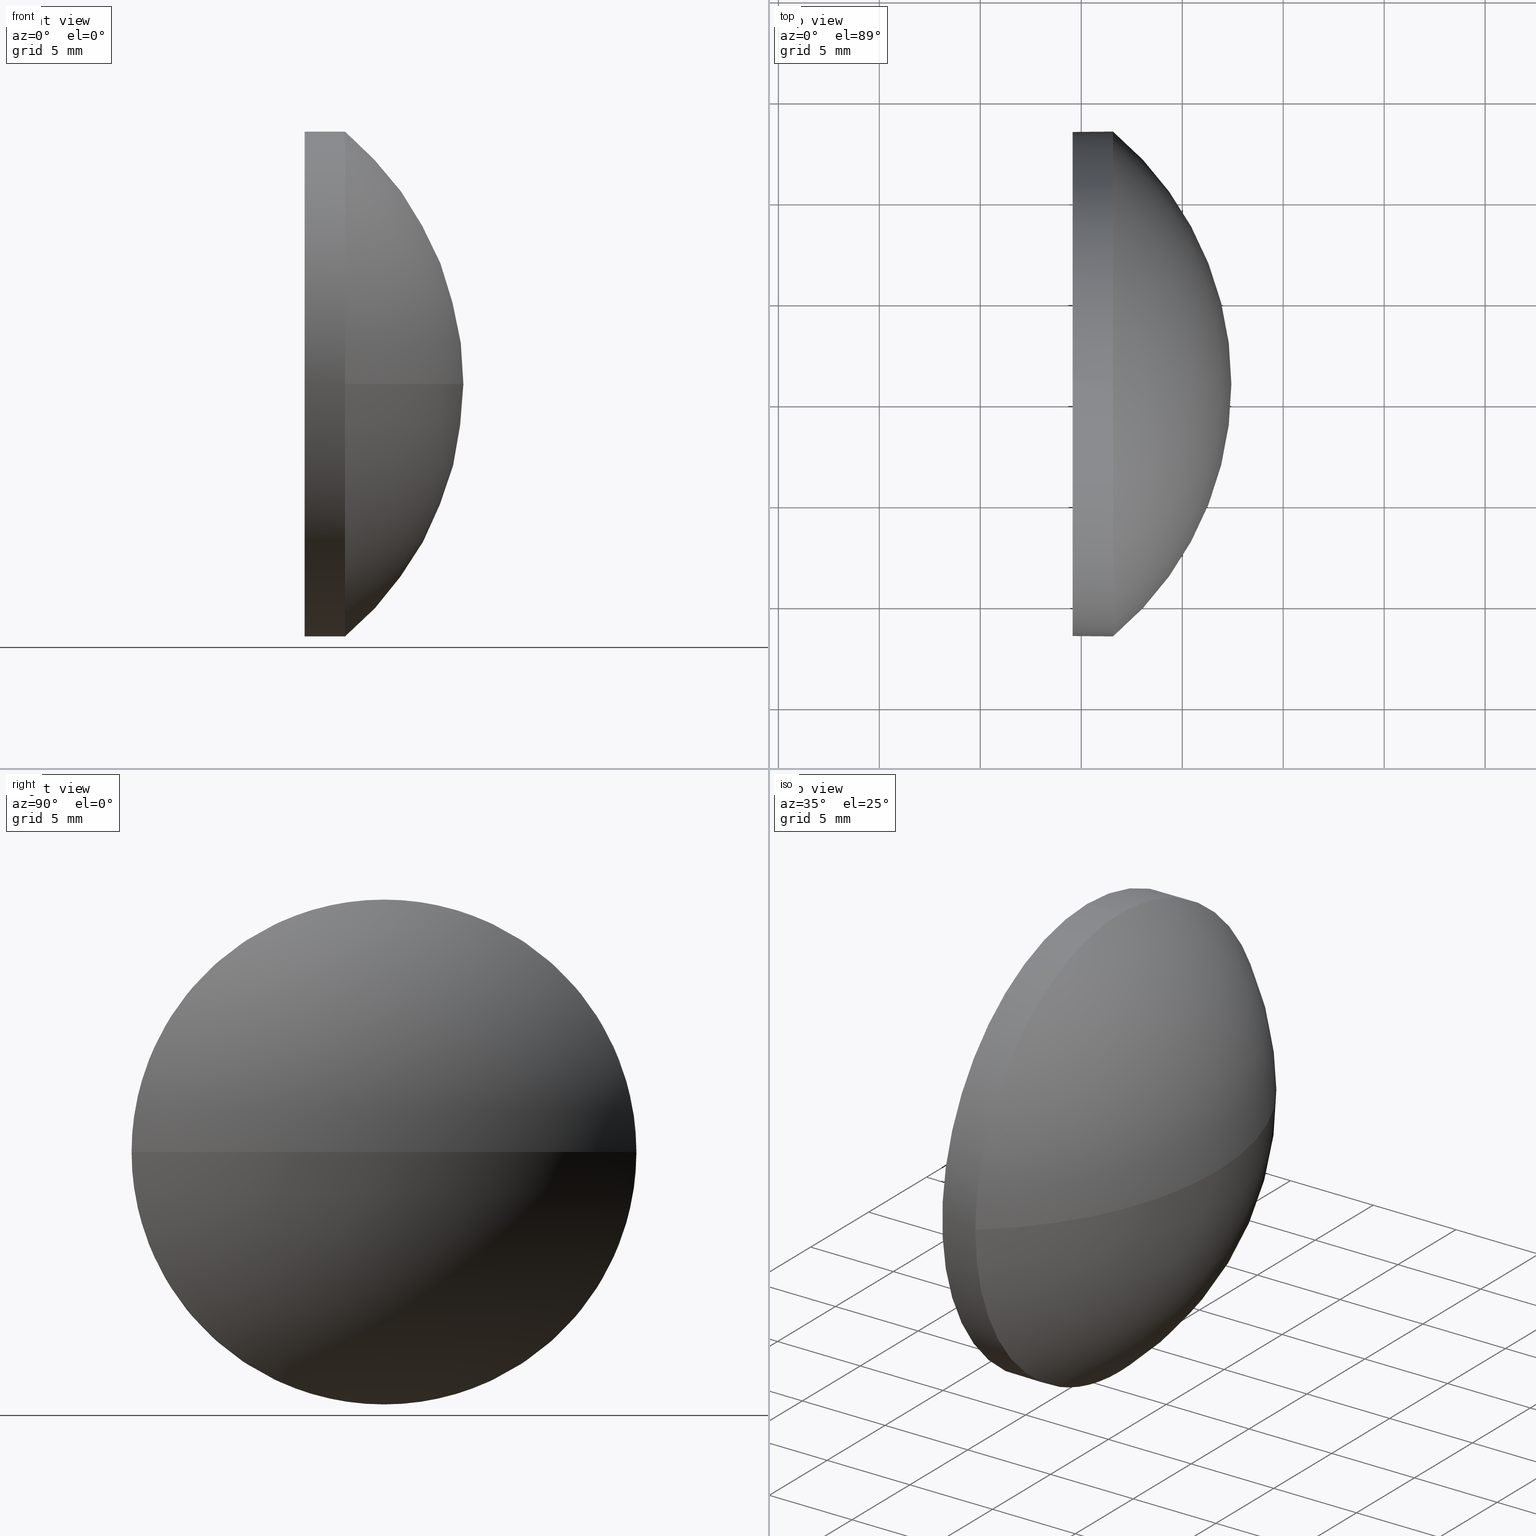
[diagram: canonical four-view strip — front | top / right | iso, engineering-drawing reading convention]
A machine part, canonical four-view strip (front | top / right | iso — engineering-drawing reading convention). The complete STEP part file that produces these views, byte-faithful:
ISO-10303-21;
HEADER;
FILE_DESCRIPTION (( 'STEP AP214' ),
    '1' );
FILE_NAME ('100124.STEP',
    '2019-05-16T03:48:24',
    ( '' ),
    ( '' ),
    'SwSTEP 2.0',
    'SolidWorks 2016',
    '' );
FILE_SCHEMA (( 'AUTOMOTIVE_DESIGN' ));
ENDSEC;

DATA;
#1 = APPLICATION_PROTOCOL_DEFINITION ( 'draft international standard', 'automotive_design', 1998, #79 ) ;
#2 = AXIS2_PLACEMENT_3D ( 'NONE', #60, #116, #23 ) ;
#3 = AXIS2_PLACEMENT_3D ( 'NONE', #145, #136, #80 ) ;
#4 = DIRECTION ( 'NONE',  ( -1.000000000000000000, -0.0000000000000000000, -0.0000000000000000000 ) ) ;
#5 = ORIENTED_EDGE ( 'NONE', *, *, #159, .T. ) ;
#6 = ADVANCED_FACE ( 'NONE', ( #96 ), #101, .F. ) ;
#7 = DIRECTION ( 'NONE',  ( 1.000000000000000000, 0.0000000000000000000, 0.0000000000000000000 ) ) ;
#8 = DIRECTION ( 'NONE',  ( 1.000000000000000000, 0.0000000000000000000, 0.0000000000000000000 ) ) ;
#9 = ADVANCED_FACE ( 'NONE', ( #138 ), #30, .T. ) ;
#10 = AXIS2_PLACEMENT_3D ( 'NONE', #14, #171, #121 ) ;
#11 = ORIENTED_EDGE ( 'NONE', *, *, #117, .F. ) ;
#12 = PRODUCT_DEFINITION_CONTEXT ( 'detailed design', #137, 'design' ) ;
#13 = DIRECTION ( 'NONE',  ( 0.0000000000000000000, 1.000000000000000000, 0.0000000000000000000 ) ) ;
#14 = CARTESIAN_POINT ( 'NONE',  ( 404.5727201653537600, 15.90499227710017900, 0.0000000000000000000 ) ) ;
#15 = PRESENTATION_STYLE_ASSIGNMENT (( #167 ) ) ;
#16 = ORIENTED_EDGE ( 'NONE', *, *, #159, .F. ) ;
#17 = AXIS2_PLACEMENT_3D ( 'NONE', #75, #182, #90 ) ;
#18 =( LENGTH_UNIT ( ) NAMED_UNIT ( * ) SI_UNIT ( .MILLI., .METRE. ) );
#19 = SURFACE_SIDE_STYLE ('',( #32 ) ) ;
#20 = STYLED_ITEM ( 'NONE', ( #47 ), #68 ) ;
#21 = PRODUCT_DEFINITION_FORMATION_WITH_SPECIFIED_SOURCE ( '�κ�', '', #92, .NOT_KNOWN. ) ;
#22 = EDGE_LOOP ( 'NONE', ( #139, #5, #70, #179, #130 ) ) ;
#23 = DIRECTION ( 'NONE',  ( 0.0000000000000000000, 0.0000000000000000000, 1.000000000000000000 ) ) ;
#24 = STYLED_ITEM ( 'NONE', ( #15 ), #160 ) ;
#25 = VERTEX_POINT ( 'NONE', #82 ) ;
#26 = ADVANCED_FACE ( 'NONE', ( #76 ), #120, .T. ) ;
#27 = CARTESIAN_POINT ( 'NONE',  ( 402.0677711457808500, 15.90499227710017900, 12.49999999999999600 ) ) ;
#28 = CARTESIAN_POINT ( 'NONE',  ( 396.1708089025551100, 15.90499227710017900, 0.0000000000000000000 ) ) ;
#29 = DIRECTION ( 'NONE',  ( -1.000000000000000000, -0.0000000000000000000, -0.0000000000000000000 ) ) ;
#30 = CYLINDRICAL_SURFACE ( 'NONE', #2, 12.49999999999999600 ) ;
#31 = CARTESIAN_POINT ( 'NONE',  ( 402.0677711457808500, 15.90499227710017900, -12.49999999999999600 ) ) ;
#32 = SURFACE_STYLE_FILL_AREA ( #111 ) ;
#33 = AXIS2_PLACEMENT_3D ( 'NONE', #119, #122, #157 ) ;
#34 = PRODUCT_RELATED_PRODUCT_CATEGORY ( 'part', '', ( #92 ) ) ;
#35 = CIRCLE ( 'NONE', #78, 12.49999999999999600 ) ;
#36 =( NAMED_UNIT ( * ) PLANE_ANGLE_UNIT ( ) SI_UNIT ( $, .RADIAN. ) );
#37 = UNCERTAINTY_MEASURE_WITH_UNIT (LENGTH_MEASURE( 1.000000000000000100E-005 ), #18, 'distance_accuracy_value', 'NONE');
#38 = AXIS2_PLACEMENT_3D ( 'NONE', #102, #184, #13 ) ;
#39 = PRODUCT_DEFINITION ( 'δ֪', '', #21, #12 ) ;
#40 = CARTESIAN_POINT ( 'NONE',  ( 406.5727201653537600, 15.90499227710017900, -12.49999999999999600 ) ) ;
#41 = LINE ( 'NONE', #31, #72 ) ;
#42 = DIRECTION ( 'NONE',  ( -1.000000000000000000, -0.0000000000000000000, -0.0000000000000000000 ) ) ;
#43 = ORIENTED_EDGE ( 'NONE', *, *, #185, .T. ) ;
#44 = EDGE_CURVE ( 'NONE', #91, #177, #144, .T. ) ;
#45 = CARTESIAN_POINT ( 'NONE',  ( 406.5727201653537600, 28.40499227710017400, 0.0000000000000000000 ) ) ;
#46 = VERTEX_POINT ( 'NONE', #40 ) ;
#47 = PRESENTATION_STYLE_ASSIGNMENT (( #71 ) ) ;
#48 = EDGE_CURVE ( 'NONE', #91, #49, #133, .T. ) ;
#49 = VERTEX_POINT ( 'NONE', #155 ) ;
#50 =( LENGTH_UNIT ( ) NAMED_UNIT ( * ) SI_UNIT ( .MILLI., .METRE. ) );
#51 = DIRECTION ( 'NONE',  ( 0.0000000000000000000, 0.0000000000000000000, 1.000000000000000000 ) ) ;
#52 = APPLICATION_PROTOCOL_DEFINITION ( 'draft international standard', 'automotive_design', 1998, #137 ) ;
#53 =( NAMED_UNIT ( * ) SI_UNIT ( $, .STERADIAN. ) SOLID_ANGLE_UNIT ( ) );
#54 = ORIENTED_EDGE ( 'NONE', *, *, #44, .F. ) ;
#55 = MECHANICAL_DESIGN_GEOMETRIC_PRESENTATION_REPRESENTATION (  '', ( #24 ), #69 ) ;
#56 = EDGE_CURVE ( 'NONE', #177, #46, #169, .T. ) ;
#57 = SPHERICAL_SURFACE ( 'NONE', #38, 16.26191126279864100 ) ;
#58 = ORIENTED_EDGE ( 'NONE', *, *, #48, .T. ) ;
#59 = CARTESIAN_POINT ( 'NONE',  ( 402.0677711457808500, 15.90499227710017900, 0.0000000000000000000 ) ) ;
#60 = CARTESIAN_POINT ( 'NONE',  ( 402.0677711457808500, 15.90499227710017900, 0.0000000000000000000 ) ) ;
#61 = EDGE_CURVE ( 'NONE', #25, #177, #175, .T. ) ;
#62 = DIRECTION ( 'NONE',  ( -0.0000000000000000000, 0.0000000000000000000, 1.000000000000000000 ) ) ;
#63 = SURFACE_SIDE_STYLE ('',( #113 ) ) ;
#64 = CIRCLE ( 'NONE', #10, 12.49999999999999600 ) ;
#65 = EDGE_LOOP ( 'NONE', ( #54, #58, #11, #148 ) ) ;
#66 =( GEOMETRIC_REPRESENTATION_CONTEXT ( 3 ) GLOBAL_UNCERTAINTY_ASSIGNED_CONTEXT ( ( #37 ) ) GLOBAL_UNIT_ASSIGNED_CONTEXT ( ( #18, #161, #53 ) ) REPRESENTATION_CONTEXT ( 'NONE', 'WORKASPACE' ) );
#67 = FILL_AREA_STYLE_COLOUR ( '', #183 ) ;
#68 = ADVANCED_BREP_SHAPE_REPRESENTATION ( '100124', ( #160, #3 ), #66 ) ;
#69 =( GEOMETRIC_REPRESENTATION_CONTEXT ( 3 ) GLOBAL_UNCERTAINTY_ASSIGNED_CONTEXT ( ( #153 ) ) GLOBAL_UNIT_ASSIGNED_CONTEXT ( ( #89, #105, #181 ) ) REPRESENTATION_CONTEXT ( 'NONE', 'WORKASPACE' ) );
#70 = ORIENTED_EDGE ( 'NONE', *, *, #172, .F. ) ;
#71 = SURFACE_STYLE_USAGE ( .BOTH. , #19 ) ;
#72 = VECTOR ( 'NONE', #29, 1000.000000000000000 ) ;
#73 = EDGE_LOOP ( 'NONE', ( #16, #87, #43, #162, #140 ) ) ;
#74 = PRESENTATION_LAYER_ASSIGNMENT (  '', '', ( #24 ) ) ;
#75 = CARTESIAN_POINT ( 'NONE',  ( 406.5727201653537600, 15.90499227710017900, 0.0000000000000000000 ) ) ;
#76 = FACE_OUTER_BOUND ( 'NONE', #73, .T. ) ;
#77 = FILL_AREA_STYLE ('',( #143 ) ) ;
#78 = AXIS2_PLACEMENT_3D ( 'NONE', #132, #158, #147 ) ;
#79 = APPLICATION_CONTEXT ( 'automotive_design' ) ;
#80 = DIRECTION ( 'NONE',  ( 1.000000000000000000, 0.0000000000000000000, 0.0000000000000000000 ) ) ;
#81 = PRODUCT_CONTEXT ( 'NONE', #79, 'mechanical' ) ;
#82 = CARTESIAN_POINT ( 'NONE',  ( 406.5727201653537600, 15.90499227710017900, 12.49999999999999600 ) ) ;
#83 = EDGE_LOOP ( 'NONE', ( #128, #146, #104, #174 ) ) ;
#84 = CARTESIAN_POINT ( 'NONE',  ( 404.5727201653537600, 15.90499227710017900, 0.0000000000000000000 ) ) ;
#85 = EDGE_CURVE ( 'NONE', #25, #170, #186, .T. ) ;
#86 = ADVANCED_FACE ( 'NONE', ( #94 ), #135, .T. ) ;
#87 = ORIENTED_EDGE ( 'NONE', *, *, #117, .T. ) ;
#88 = DIRECTION ( 'NONE',  ( -1.000000000000000000, -0.0000000000000000000, -0.0000000000000000000 ) ) ;
#89 =( LENGTH_UNIT ( ) NAMED_UNIT ( * ) SI_UNIT ( .MILLI., .METRE. ) );
#90 = DIRECTION ( 'NONE',  ( 0.0000000000000000000, 0.0000000000000000000, 1.000000000000000000 ) ) ;
#91 = VERTEX_POINT ( 'NONE', #112 ) ;
#92 = PRODUCT ( '100124', '100124', '', ( #81 ) ) ;
#93 = ORIENTED_EDGE ( 'NONE', *, *, #165, .T. ) ;
#94 = FACE_OUTER_BOUND ( 'NONE', #65, .T. ) ;
#95 = PRODUCT_DEFINITION_SHAPE ( 'NONE', 'NONE',  #39 ) ;
#96 = FACE_OUTER_BOUND ( 'NONE', #176, .T. ) ;
#97 =( NAMED_UNIT ( * ) SI_UNIT ( $, .STERADIAN. ) SOLID_ANGLE_UNIT ( ) );
#98 = PRESENTATION_LAYER_ASSIGNMENT (  '', '', ( #20 ) ) ;
#99 = DIRECTION ( 'NONE',  ( 0.0000000000000000000, 0.0000000000000000000, 1.000000000000000000 ) ) ;
#100 = CIRCLE ( 'NONE', #17, 12.49999999999999600 ) ;
#101 = PLANE ( 'NONE',  #178 ) ;
#102 = CARTESIAN_POINT ( 'NONE',  ( 396.1708089025551100, 15.90499227710017900, 0.0000000000000000000 ) ) ;
#103 = VECTOR ( 'NONE', #4, 1000.000000000000000 ) ;
#104 = ORIENTED_EDGE ( 'NONE', *, *, #61, .F. ) ;
#105 =( NAMED_UNIT ( * ) PLANE_ANGLE_UNIT ( ) SI_UNIT ( $, .RADIAN. ) );
#106 = DIRECTION ( 'NONE',  ( 0.0000000000000000000, 0.0000000000000000000, 1.000000000000000000 ) ) ;
#107 = ORIENTED_EDGE ( 'NONE', *, *, #172, .T. ) ;
#108 = AXIS2_PLACEMENT_3D ( 'NONE', #28, #115, #141 ) ;
#109 =( GEOMETRIC_REPRESENTATION_CONTEXT ( 3 ) GLOBAL_UNCERTAINTY_ASSIGNED_CONTEXT ( ( #124 ) ) GLOBAL_UNIT_ASSIGNED_CONTEXT ( ( #50, #36, #97 ) ) REPRESENTATION_CONTEXT ( 'NONE', 'WORKASPACE' ) );
#110 = COLOUR_RGB ( '',1.000000000000000000, 1.000000000000000000, 1.000000000000000000 ) ;
#111 = FILL_AREA_STYLE ('',( #67 ) ) ;
#112 = CARTESIAN_POINT ( 'NONE',  ( 412.4327201653537700, 15.90499227710017900, 0.0000000000000000000 ) ) ;
#113 = SURFACE_STYLE_FILL_AREA ( #77 ) ;
#114 = SHAPE_DEFINITION_REPRESENTATION ( #95, #68 ) ;
#115 = DIRECTION ( 'NONE',  ( 0.0000000000000000000, 1.224646799147353200E-016, -1.000000000000000000 ) ) ;
#116 = DIRECTION ( 'NONE',  ( -1.000000000000000000, -0.0000000000000000000, -0.0000000000000000000 ) ) ;
#117 = EDGE_CURVE ( 'NONE', #46, #49, #100, .T. ) ;
#118 = CARTESIAN_POINT ( 'NONE',  ( 396.1708089025551100, 15.90499227710017900, 0.0000000000000000000 ) ) ;
#119 = CARTESIAN_POINT ( 'NONE',  ( 396.1708089025551100, 15.90499227710017900, 0.0000000000000000000 ) ) ;
#120 = CYLINDRICAL_SURFACE ( 'NONE', #126, 12.49999999999999600 ) ;
#121 = DIRECTION ( 'NONE',  ( 0.0000000000000000000, 0.0000000000000000000, 1.000000000000000000 ) ) ;
#122 = DIRECTION ( 'NONE',  ( -0.0000000000000000000, 0.0000000000000000000, -1.000000000000000000 ) ) ;
#123 = CLOSED_SHELL ( 'NONE', ( #9, #86, #129, #26, #6 ) ) ;
#124 = UNCERTAINTY_MEASURE_WITH_UNIT (LENGTH_MEASURE( 1.000000000000000100E-005 ), #50, 'distance_accuracy_value', 'NONE');
#125 = CARTESIAN_POINT ( 'NONE',  ( 406.5727201653537600, 15.90499227710017900, 0.0000000000000000000 ) ) ;
#126 = AXIS2_PLACEMENT_3D ( 'NONE', #59, #42, #154 ) ;
#127 = VERTEX_POINT ( 'NONE', #156 ) ;
#128 = ORIENTED_EDGE ( 'NONE', *, *, #48, .F. ) ;
#129 = ADVANCED_FACE ( 'NONE', ( #152 ), #57, .T. ) ;
#130 = ORIENTED_EDGE ( 'NONE', *, *, #61, .T. ) ;
#131 = DIRECTION ( 'NONE',  ( -1.000000000000000000, -0.0000000000000000000, -0.0000000000000000000 ) ) ;
#132 = CARTESIAN_POINT ( 'NONE',  ( 404.5727201653537600, 15.90499227710017900, 0.0000000000000000000 ) ) ;
#133 = CIRCLE ( 'NONE', #108, 16.26191126279863800 ) ;
#134 = AXIS2_PLACEMENT_3D ( 'NONE', #118, #62, #8 ) ;
#135 = SPHERICAL_SURFACE ( 'NONE', #33, 16.26191126279864100 ) ;
#136 = DIRECTION ( 'NONE',  ( 0.0000000000000000000, 0.0000000000000000000, 1.000000000000000000 ) ) ;
#137 = APPLICATION_CONTEXT ( 'automotive_design' ) ;
#138 = FACE_OUTER_BOUND ( 'NONE', #22, .T. ) ;
#139 = ORIENTED_EDGE ( 'NONE', *, *, #56, .T. ) ;
#140 = ORIENTED_EDGE ( 'NONE', *, *, #165, .F. ) ;
#141 = DIRECTION ( 'NONE',  ( 0.0000000000000000000, 1.000000000000000000, 1.224646799147353500E-016 ) ) ;
#142 = AXIS2_PLACEMENT_3D ( 'NONE', #166, #88, #99 ) ;
#143 = FILL_AREA_STYLE_COLOUR ( '', #110 ) ;
#144 = CIRCLE ( 'NONE', #134, 16.26191126279863400 ) ;
#145 = CARTESIAN_POINT ( 'NONE',  ( 0.0000000000000000000, 0.0000000000000000000, 0.0000000000000000000 ) ) ;
#146 = ORIENTED_EDGE ( 'NONE', *, *, #44, .T. ) ;
#147 = DIRECTION ( 'NONE',  ( 0.0000000000000000000, 0.0000000000000000000, 1.000000000000000000 ) ) ;
#148 = ORIENTED_EDGE ( 'NONE', *, *, #56, .F. ) ;
#149 = DIRECTION ( 'NONE',  ( -1.000000000000000000, -0.0000000000000000000, -0.0000000000000000000 ) ) ;
#150 = AXIS2_PLACEMENT_3D ( 'NONE', #125, #149, #51 ) ;
#151 = CARTESIAN_POINT ( 'NONE',  ( 406.5727201653537600, 15.90499227710017900, 0.0000000000000000000 ) ) ;
#152 = FACE_OUTER_BOUND ( 'NONE', #83, .T. ) ;
#153 = UNCERTAINTY_MEASURE_WITH_UNIT (LENGTH_MEASURE( 1.000000000000000100E-005 ), #89, 'distance_accuracy_value', 'NONE');
#154 = DIRECTION ( 'NONE',  ( 0.0000000000000000000, 0.0000000000000000000, 1.000000000000000000 ) ) ;
#155 = CARTESIAN_POINT ( 'NONE',  ( 406.5727201653537600, 3.404992277100186400, -1.530808498934190700E-015 ) ) ;
#156 = CARTESIAN_POINT ( 'NONE',  ( 404.5727201653537600, 15.90499227710017900, -12.49999999999999600 ) ) ;
#157 = DIRECTION ( 'NONE',  ( 0.0000000000000000000, 1.000000000000000000, 0.0000000000000000000 ) ) ;
#158 = DIRECTION ( 'NONE',  ( -1.000000000000000000, -0.0000000000000000000, -0.0000000000000000000 ) ) ;
#159 = EDGE_CURVE ( 'NONE', #46, #127, #41, .T. ) ;
#160 = MANIFOLD_SOLID_BREP ( '��ת1', #123 ) ;
#161 =( NAMED_UNIT ( * ) PLANE_ANGLE_UNIT ( ) SI_UNIT ( $, .RADIAN. ) );
#162 = ORIENTED_EDGE ( 'NONE', *, *, #85, .T. ) ;
#163 = AXIS2_PLACEMENT_3D ( 'NONE', #151, #131, #106 ) ;
#164 = CIRCLE ( 'NONE', #150, 12.49999999999999600 ) ;
#165 = EDGE_CURVE ( 'NONE', #127, #170, #64, .T. ) ;
#166 = CARTESIAN_POINT ( 'NONE',  ( 406.5727201653537600, 15.90499227710017900, 0.0000000000000000000 ) ) ;
#167 = SURFACE_STYLE_USAGE ( .BOTH. , #63 ) ;
#168 = CARTESIAN_POINT ( 'NONE',  ( 404.5727201653537600, 15.90499227710017900, 12.49999999999999600 ) ) ;
#169 = CIRCLE ( 'NONE', #142, 12.49999999999999600 ) ;
#170 = VERTEX_POINT ( 'NONE', #168 ) ;
#171 = DIRECTION ( 'NONE',  ( -1.000000000000000000, -0.0000000000000000000, -0.0000000000000000000 ) ) ;
#172 = EDGE_CURVE ( 'NONE', #170, #127, #35, .T. ) ;
#173 = MECHANICAL_DESIGN_GEOMETRIC_PRESENTATION_REPRESENTATION (  '', ( #20 ), #109 ) ;
#174 = ORIENTED_EDGE ( 'NONE', *, *, #185, .F. ) ;
#175 = CIRCLE ( 'NONE', #163, 12.49999999999999600 ) ;
#176 = EDGE_LOOP ( 'NONE', ( #107, #93 ) ) ;
#177 = VERTEX_POINT ( 'NONE', #45 ) ;
#178 = AXIS2_PLACEMENT_3D ( 'NONE', #84, #7, #180 ) ;
#179 = ORIENTED_EDGE ( 'NONE', *, *, #85, .F. ) ;
#180 = DIRECTION ( 'NONE',  ( 0.0000000000000000000, 0.0000000000000000000, -1.000000000000000000 ) ) ;
#181 =( NAMED_UNIT ( * ) SI_UNIT ( $, .STERADIAN. ) SOLID_ANGLE_UNIT ( ) );
#182 = DIRECTION ( 'NONE',  ( -1.000000000000000000, -0.0000000000000000000, -0.0000000000000000000 ) ) ;
#183 = COLOUR_RGB ( '',1.000000000000000000, 1.000000000000000000, 1.000000000000000000 ) ;
#184 = DIRECTION ( 'NONE',  ( -0.0000000000000000000, 0.0000000000000000000, -1.000000000000000000 ) ) ;
#185 = EDGE_CURVE ( 'NONE', #49, #25, #164, .T. ) ;
#186 = LINE ( 'NONE', #27, #103 ) ;
ENDSEC;
END-ISO-10303-21;
